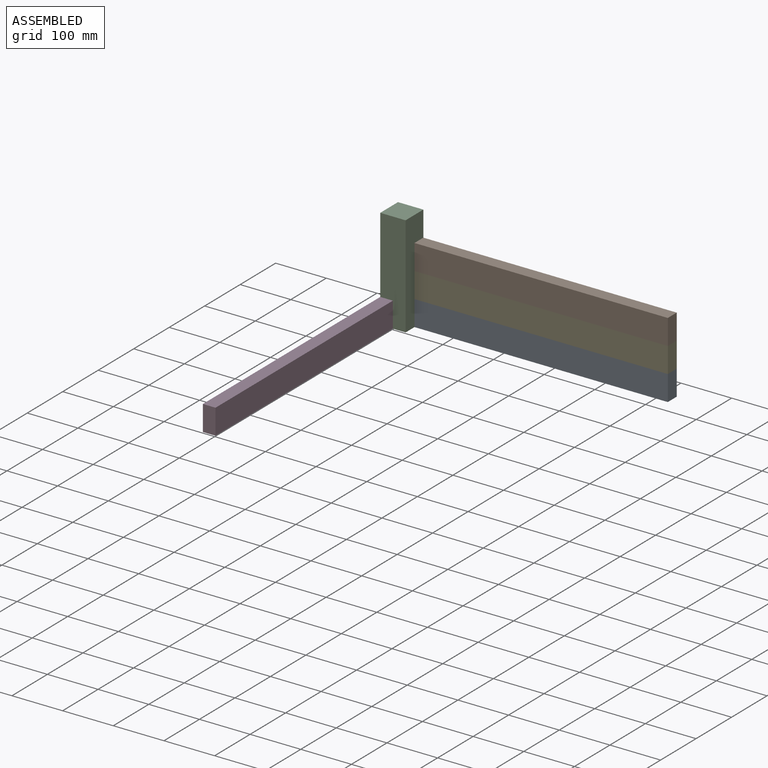
[diagram: assembled view]
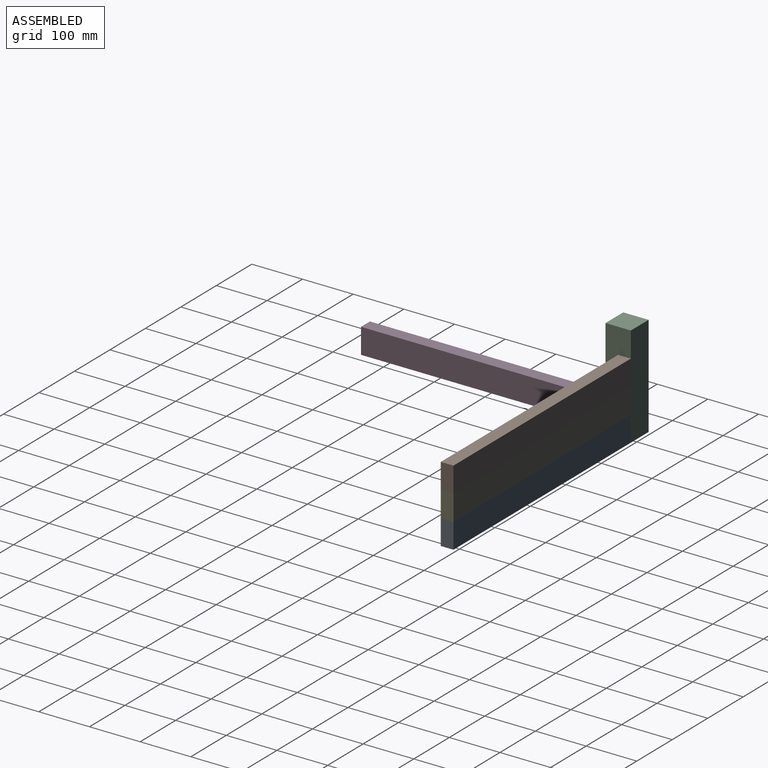
[diagram: assembled view, second angle]
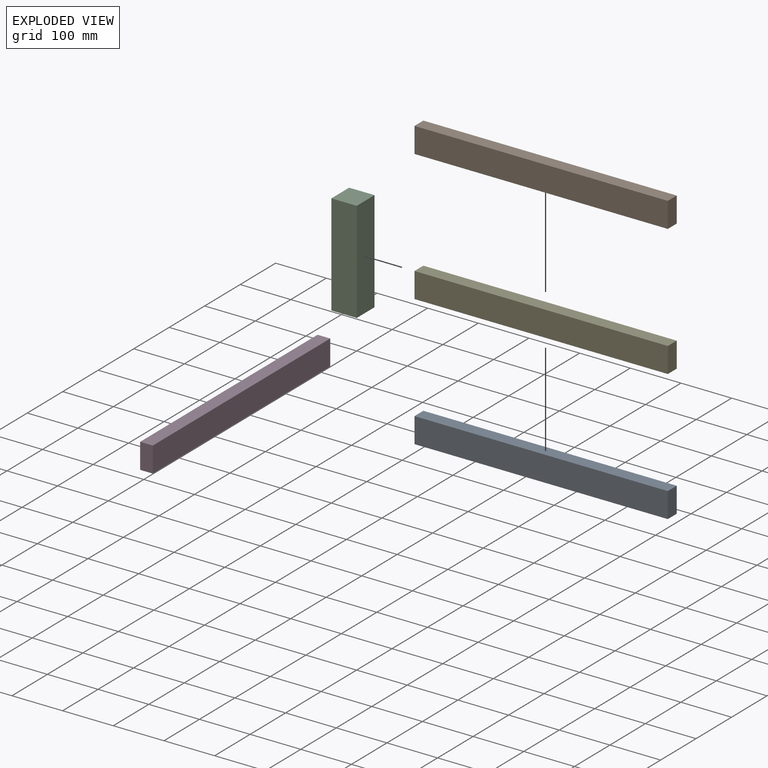
[diagram: exploded view]
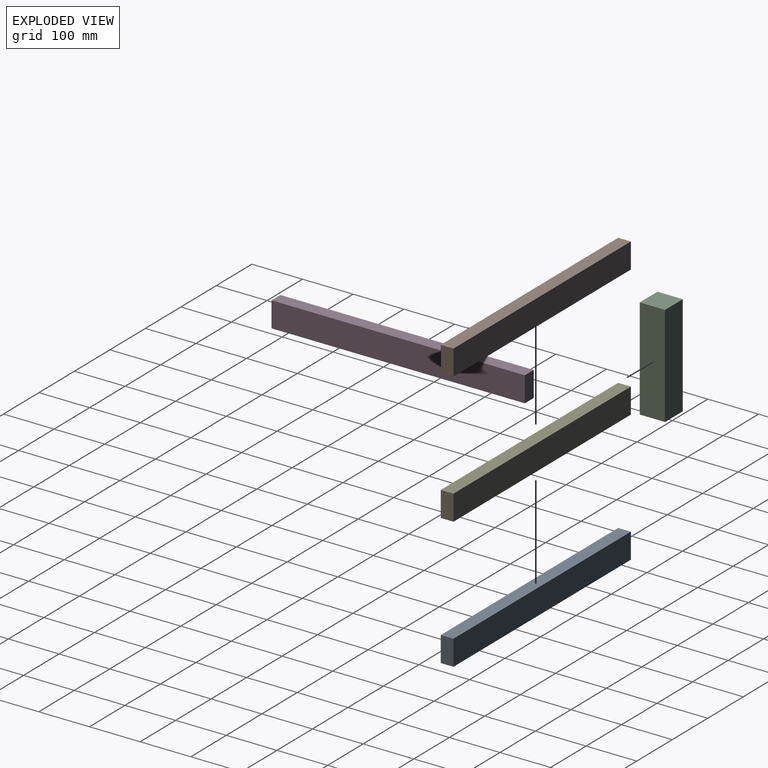
[diagram: exploded view, second angle]
ASSEMBLY  parts=5 mates=4
PART A: 6 faces, bbox 500x25x50 mm
  f0: plane 50x25mm, normal (1,0,0), area 1250mm2, adj f1,f3,f4,f5
  f1: plane 500x25mm, normal (0,0,1), area 12500mm2, adj f0,f2,f4,f5
  f2: plane 50x25mm, normal (-1,0,0), area 1250mm2, adj f1,f3,f4,f5
  f3: plane 500x25mm, normal (0,0,-1), area 12500mm2, adj f0,f2,f4,f5
  f4: plane 500x50mm, normal (0,-1,0), area 25000mm2, adj f0,f1,f2,f3
  f5: plane 500x50mm, normal (0,1,0), area 25000mm2, adj f0,f1,f2,f3
PART B: same geometry as A
PART C: 6 faces, bbox 50x50x200 mm
  f0: plane 200x50mm, normal (-1,0,0), area 10000mm2, adj f1,f3,f4,f5
  f1: plane 50x50mm, normal (0,0,-1), area 2500mm2, adj f0,f2,f4,f5
  f2: plane 200x50mm, normal (1,0,0), area 10000mm2, adj f1,f3,f4,f5
  f3: plane 50x50mm, normal (0,0,1), area 2500mm2, adj f0,f2,f4,f5
  f4: plane 200x50mm, normal (0,-1,0), area 10000mm2, adj f0,f1,f2,f3
  f5: plane 200x50mm, normal (0,1,0), area 10000mm2, adj f0,f1,f2,f3
PART D: same geometry as A
PART E: same geometry as A
PLACE A t=(145.91,-34.61,-52.62)mm
PLACE B t=(145.91,-34.61,47.38)mm
PLACE C t=(-104.05,-34.61,15.38)mm
PLACE D rot(axis=(0,0,1),90deg) t=(-154.09,-334.61,-52.62)mm
PLACE E t=(145.91,-34.61,-2.62)mm
MATE fastened B.f3 <-> E.f1  axis (0,0,-1) through (-104.09,-34.61,22.38)mm
MATE fastened E.f3 <-> A.f1  axis (0,0,-1) through (-104.09,-59.61,-27.62)mm
MATE fastened D.f0 <-> C.f4  axis (0,1,0) through (-154.09,-84.61,-77.62)mm
MATE fastened A.f2 <-> C.f2  axis (-1,0,0) through (-104.09,-34.61,-77.62)mm
